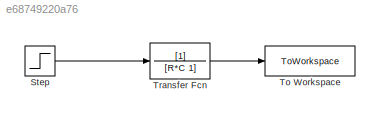
MODEL slx_e68749220a76
KIND model
CONFIG AbsTol = auto
CONFIG EnableMultiTasking = off
CONFIG FixedStep = auto
CONFIG MaxStep = stepMaxStepSize
CONFIG MinStep = auto
CONFIG RelTol = 1e-3
CONFIG SampleTimeConstraint = Unconstrained
CONFIG SolverName = VariableStepAuto
CONFIG StartTime = 0.0
CONFIG StopTime = stepSimTime
BLOCK [Step] Step
  After = stepAmplitude
  SampleTime = 0
  Time = stepOnTime
BLOCK [ToWorkspace] To Workspace
  FixptAsFi = on
  MaxDataPoints = inf
  Ports = [1]
  SampleTime = -1
  SaveFormat = Timeseries
  VariableName = simulinkStepResponse
BLOCK [TransferFcn] Transfer Fcn
  Denominator = [R*C 1]
LINE Step:1 -> Transfer Fcn:1
LINE Transfer Fcn:1 -> To Workspace:1
